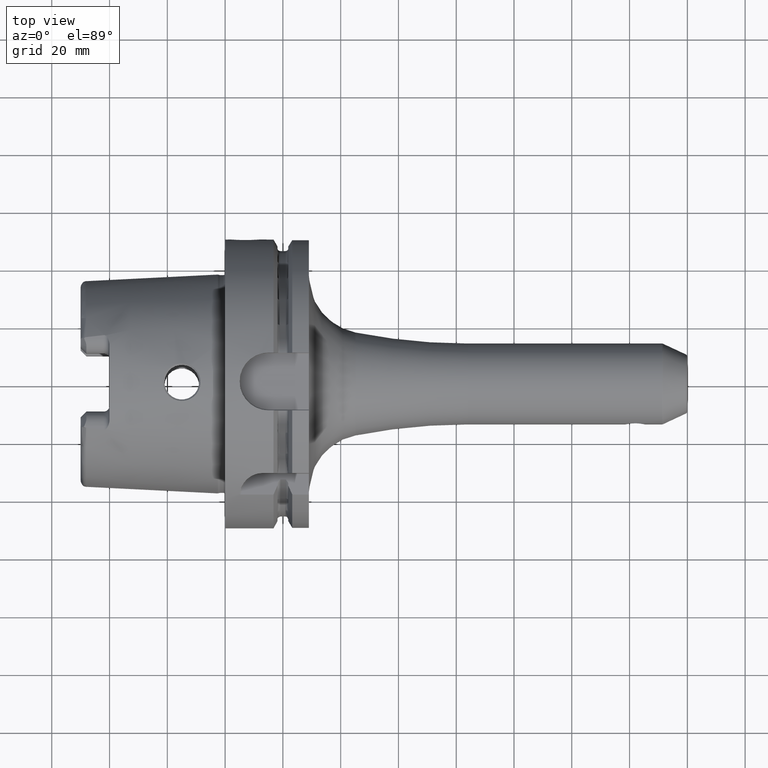
[diagram: clean part render]
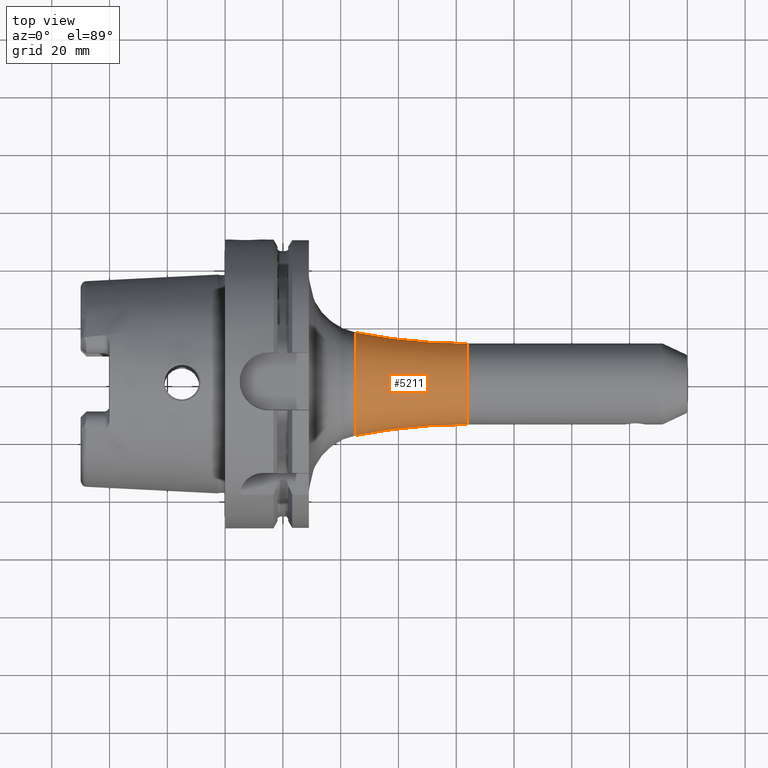
[diagram: same view with one face highlighted and labeled with its STEP entity id]
A machine part, top view. The second image highlights one B-rep face of the part: STEP entity #5211.
In plain terms, the highlighted toroidal blend (fillet) surface has major radius 214 mm and minor (blend) radius 200 mm.
Its self-contained STEP definition (entity closure, byte-faithful):
#1825=CARTESIAN_POINT('',(4.511111111111E1,0.E0,0.E0));
#1826=DIRECTION('',(1.E0,0.E0,0.E0));
#1827=DIRECTION('',(0.E0,1.E0,0.E0));
#1828=AXIS2_PLACEMENT_3D('',#1825,#1826,#1827);
#1830=CARTESIAN_POINT('',(8.4E1,2.14E2,2.620744150175E-14));
#1831=DIRECTION('',(0.E0,0.E0,1.E0));
#1832=DIRECTION('',(-1.944444444444E-1,-9.809135323894E-1,0.E0));
#1833=AXIS2_PLACEMENT_3D('',#1830,#1831,#1832);
#1835=CARTESIAN_POINT('',(8.4E1,-2.14E2,0.E0));
#1836=DIRECTION('',(0.E0,0.E0,-1.E0));
#1837=DIRECTION('',(-1.944444444444E-1,9.809135323894E-1,0.E0));
#1838=AXIS2_PLACEMENT_3D('',#1835,#1836,#1837);
#1840=CARTESIAN_POINT('',(8.4E1,0.E0,0.E0));
#1841=DIRECTION('',(1.E0,0.E0,0.E0));
#1842=DIRECTION('',(0.E0,1.E0,0.E0));
#1843=AXIS2_PLACEMENT_3D('',#1840,#1841,#1842);
#3327=CARTESIAN_POINT('',(8.4E1,1.4E1,0.E0));
#3328=CARTESIAN_POINT('',(8.4E1,-1.4E1,0.E0));
#3329=VERTEX_POINT('',#3327);
#3330=VERTEX_POINT('',#3328);
#3335=CARTESIAN_POINT('',(4.511111111111E1,1.781729352212E1,0.E0));
#3336=CARTESIAN_POINT('',(4.511111111111E1,-1.781729352212E1,0.E0));
#3337=VERTEX_POINT('',#3335);
#3338=VERTEX_POINT('',#3336);
#5199=CARTESIAN_POINT('',(8.4E1,0.E0,0.E0));
#5200=DIRECTION('',(1.E0,0.E0,0.E0));
#5201=DIRECTION('',(0.E0,-1.E0,0.E0));
#5202=AXIS2_PLACEMENT_3D('',#5199,#5200,#5201);
#5203=TOROIDAL_SURFACE('',#5202,2.14E2,2.E2);
#5204=ORIENTED_EDGE('',*,*,#5164,.F.);
#5205=ORIENTED_EDGE('',*,*,#5194,.T.);
#5207=ORIENTED_EDGE('',*,*,#5206,.T.);
#5208=ORIENTED_EDGE('',*,*,#5190,.F.);
#5209=EDGE_LOOP('',(#5204,#5205,#5207,#5208));
#5210=FACE_OUTER_BOUND('',#5209,.F.);
#5211=ADVANCED_FACE('',(#5210),#5203,.F.);
#1829=CIRCLE('',#1828,1.781729352212E1);
#1834=CIRCLE('',#1833,2.E2);
#1839=CIRCLE('',#1838,2.E2);
#1844=CIRCLE('',#1843,1.4E1);
#5164=EDGE_CURVE('',#3337,#3338,#1829,.T.);
#5190=EDGE_CURVE('',#3338,#3330,#1839,.T.);
#5194=EDGE_CURVE('',#3337,#3329,#1834,.T.);
#5206=EDGE_CURVE('',#3329,#3330,#1844,.T.);